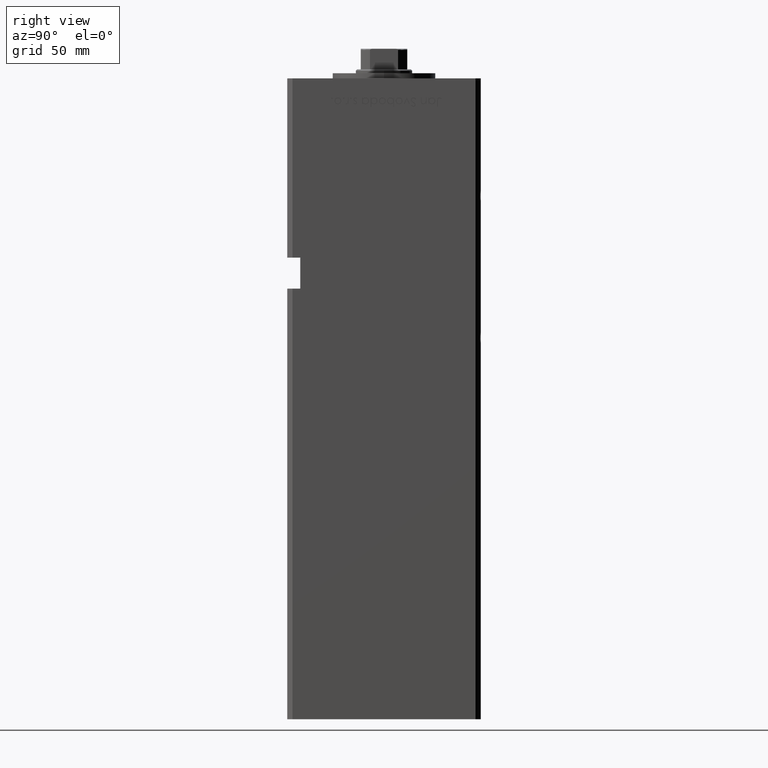
[diagram: clean part render]
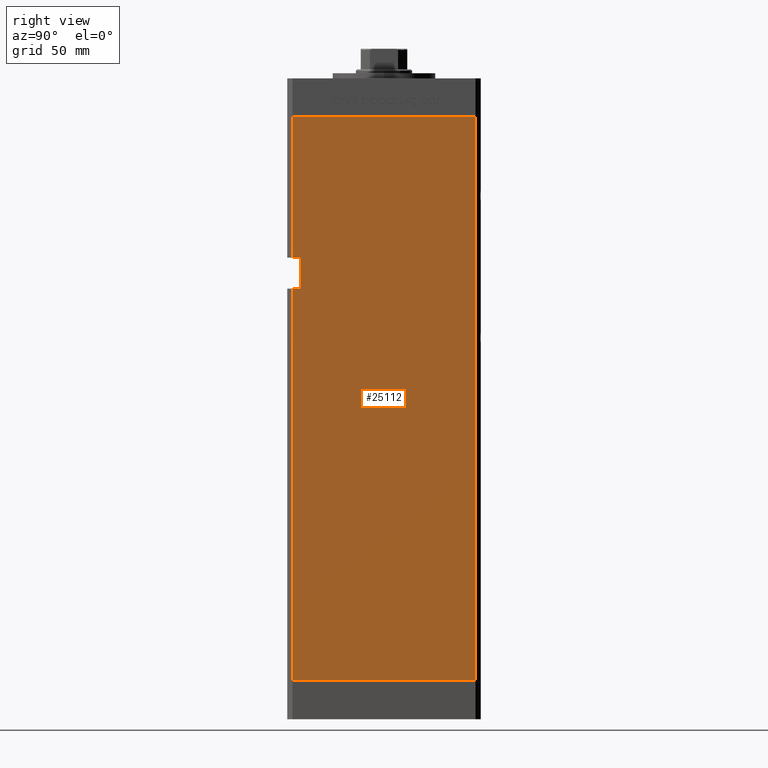
[diagram: same view with one face highlighted and labeled with its STEP entity id]
A machine part, right view. The second image highlights one B-rep face of the part: STEP entity #25112.
In plain terms, the highlighted planar face has unit normal (1, -0, 0).
Its self-contained STEP definition (entity closure, byte-faithful):
#729 = CARTESIAN_POINT ( 'NONE',  ( 42.50000000000001421, 35.50000000000000711, 218.5000000000000000 ) ) ;
#2026 = VECTOR ( 'NONE', #32551, 1000.000000000000000 ) ;
#2828 = DIRECTION ( 'NONE',  ( -0.000000000000000000, -1.000000000000000000, -0.000000000000000000 ) ) ;
#4306 = CARTESIAN_POINT ( 'NONE',  ( 42.50000000000001421, 35.50000000000000711, 218.5000000000000000 ) ) ;
#5511 = CARTESIAN_POINT ( 'NONE',  ( 42.50000000000001421, 35.50000000000000711, 218.5000000000000000 ) ) ;
#5968 = VERTEX_POINT ( 'NONE', #36572 ) ;
#7560 = FACE_OUTER_BOUND ( 'NONE', #35244, .T. ) ;
#7664 = VERTEX_POINT ( 'NONE', #41730 ) ;
#7673 = VERTEX_POINT ( 'NONE', #13262 ) ;
#7823 = CARTESIAN_POINT ( 'NONE',  ( 42.50000000000001421, 35.50000000000000711, 218.5000000000000000 ) ) ;
#8351 = DIRECTION ( 'NONE',  ( -3.909236002201255146E-16, -1.000000000000000000, 0.000000000000000000 ) ) ;
#10672 = CARTESIAN_POINT ( 'NONE',  ( 42.49999999999998579, -35.50000000000000711, 218.5000000000000000 ) ) ;
#10757 = VECTOR ( 'NONE', #52993, 1000.000000000000000 ) ;
#11605 = VECTOR ( 'NONE', #48621, 1000.000000000000000 ) ;
#11645 = ORIENTED_EDGE ( 'NONE', *, *, #26964, .F. ) ;
#12061 = EDGE_CURVE ( 'NONE', #5968, #26174, #52006, .T. ) ;
#12941 = LINE ( 'NONE', #16187, #21283 ) ;
#13262 = CARTESIAN_POINT ( 'NONE',  ( 42.49999999999998579, -35.50000000000000711, 164.0000000000000284 ) ) ;
#14112 = AXIS2_PLACEMENT_3D ( 'NONE', #7823, #31487, #27458 ) ;
#14510 = CARTESIAN_POINT ( 'NONE',  ( 42.49999999999998579, -35.50000000000000711, 152.0000000000000284 ) ) ;
#16187 = CARTESIAN_POINT ( 'NONE',  ( 42.49999999999998579, -32.50000000000000711, 164.0000000000000284 ) ) ;
#16630 = VECTOR ( 'NONE', #8351, 1000.000000000000000 ) ;
#17766 = EDGE_CURVE ( 'NONE', #21323, #7664, #24999, .T. ) ;
#19412 = CARTESIAN_POINT ( 'NONE',  ( 42.49999999999998579, -32.50000000000000711, 164.0000000000000284 ) ) ;
#19758 = ORIENTED_EDGE ( 'NONE', *, *, #12061, .T. ) ;
#21283 = VECTOR ( 'NONE', #29337, 1000.000000000000000 ) ;
#21323 = VERTEX_POINT ( 'NONE', #729 ) ;
#22462 = EDGE_CURVE ( 'NONE', #26174, #38251, #28798, .T. ) ;
#24234 = LINE ( 'NONE', #36579, #10757 ) ;
#24498 = CARTESIAN_POINT ( 'NONE',  ( 42.49999999999998579, -35.50000000000000711, 218.5000000000000000 ) ) ;
#24999 = LINE ( 'NONE', #4306, #16630 ) ;
#25112 = ADVANCED_FACE ( 'NONE', ( #7560 ), #35233, .T. ) ;
#25462 = EDGE_CURVE ( 'NONE', #21323, #40103, #33986, .T. ) ;
#25670 = DIRECTION ( 'NONE',  ( -0.000000000000000000, -0.000000000000000000, -1.000000000000000000 ) ) ;
#26174 = VERTEX_POINT ( 'NONE', #14510 ) ;
#26201 = VECTOR ( 'NONE', #25670, 1000.000000000000000 ) ;
#26710 = VERTEX_POINT ( 'NONE', #19412 ) ;
#26964 = EDGE_CURVE ( 'NONE', #40103, #38251, #40016, .T. ) ;
#27458 = DIRECTION ( 'NONE',  ( 3.909236002201255146E-16, 1.000000000000000000, 0.000000000000000000 ) ) ;
#28798 = LINE ( 'NONE', #24498, #2026 ) ;
#29337 = DIRECTION ( 'NONE',  ( -0.000000000000000000, -0.000000000000000000, 1.000000000000000000 ) ) ;
#30779 = CARTESIAN_POINT ( 'NONE',  ( 42.49999999999998579, -35.50000000000000711, 0.000000000000000000 ) ) ;
#31265 = ORIENTED_EDGE ( 'NONE', *, *, #17766, .T. ) ;
#31487 = DIRECTION ( 'NONE',  ( 1.000000000000000000, -3.909236002201255146E-16, 0.000000000000000000 ) ) ;
#31698 = ORIENTED_EDGE ( 'NONE', *, *, #25462, .F. ) ;
#32551 = DIRECTION ( 'NONE',  ( -0.000000000000000000, -0.000000000000000000, -1.000000000000000000 ) ) ;
#33783 = VECTOR ( 'NONE', #46674, 1000.000000000000000 ) ;
#33900 = ORIENTED_EDGE ( 'NONE', *, *, #22462, .T. ) ;
#33986 = LINE ( 'NONE', #5511, #26201 ) ;
#35002 = EDGE_CURVE ( 'NONE', #7664, #7673, #51239, .T. ) ;
#35233 = PLANE ( 'NONE',  #14112 ) ;
#35244 = EDGE_LOOP ( 'NONE', ( #19758, #33900, #11645, #31698, #31265, #51640, #46640, #49765 ) ) ;
#36158 = VECTOR ( 'NONE', #2828, 1000.000000000000000 ) ;
#36572 = CARTESIAN_POINT ( 'NONE',  ( 42.49999999999998579, -32.50000000000000000, 152.0000000000000284 ) ) ;
#36579 = CARTESIAN_POINT ( 'NONE',  ( 42.49999999999998579, -32.50000000000000711, 164.0000000000000284 ) ) ;
#38251 = VERTEX_POINT ( 'NONE', #30779 ) ;
#38698 = CARTESIAN_POINT ( 'NONE',  ( 42.50000000000001421, 35.50000000000000711, 0.000000000000000000 ) ) ;
#39151 = EDGE_CURVE ( 'NONE', #26710, #7673, #24234, .T. ) ;
#40016 = LINE ( 'NONE', #48095, #11605 ) ;
#40103 = VERTEX_POINT ( 'NONE', #38698 ) ;
#41730 = CARTESIAN_POINT ( 'NONE',  ( 42.49999999999998579, -35.50000000000000711, 218.5000000000000000 ) ) ;
#43124 = CARTESIAN_POINT ( 'NONE',  ( 42.49999999999998579, -32.50000000000000711, 152.0000000000000284 ) ) ;
#46640 = ORIENTED_EDGE ( 'NONE', *, *, #39151, .F. ) ;
#46674 = DIRECTION ( 'NONE',  ( -0.000000000000000000, -0.000000000000000000, -1.000000000000000000 ) ) ;
#48095 = CARTESIAN_POINT ( 'NONE',  ( 42.50000000000001421, 35.50000000000000711, 0.000000000000000000 ) ) ;
#48621 = DIRECTION ( 'NONE',  ( -3.909236002201255146E-16, -1.000000000000000000, 0.000000000000000000 ) ) ;
#49765 = ORIENTED_EDGE ( 'NONE', *, *, #51079, .F. ) ;
#51079 = EDGE_CURVE ( 'NONE', #5968, #26710, #12941, .T. ) ;
#51239 = LINE ( 'NONE', #10672, #33783 ) ;
#51640 = ORIENTED_EDGE ( 'NONE', *, *, #35002, .T. ) ;
#52006 = LINE ( 'NONE', #43124, #36158 ) ;
#52993 = DIRECTION ( 'NONE',  ( -0.000000000000000000, -1.000000000000000000, -0.000000000000000000 ) ) ;